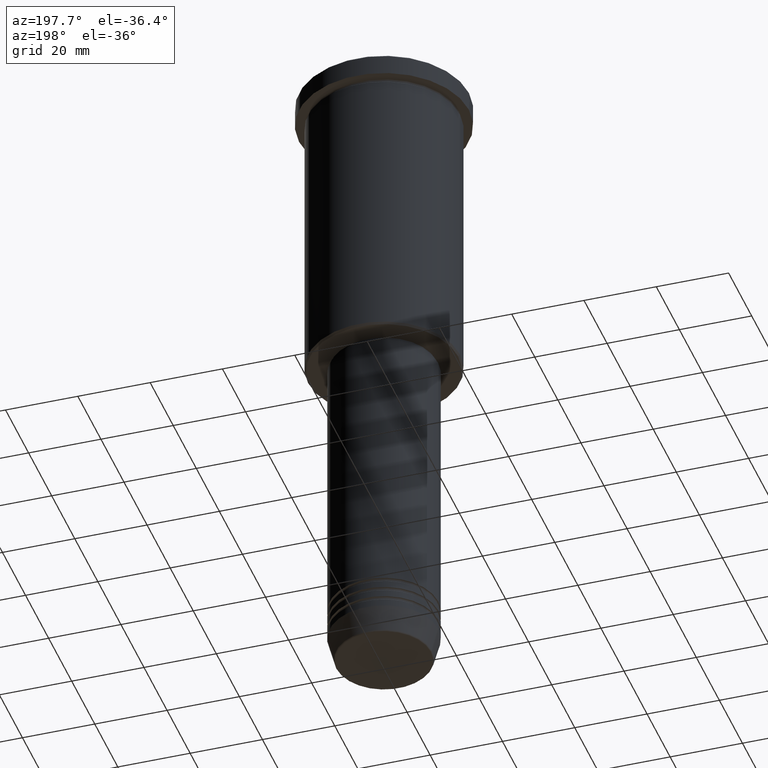
[diagram: clean part render]
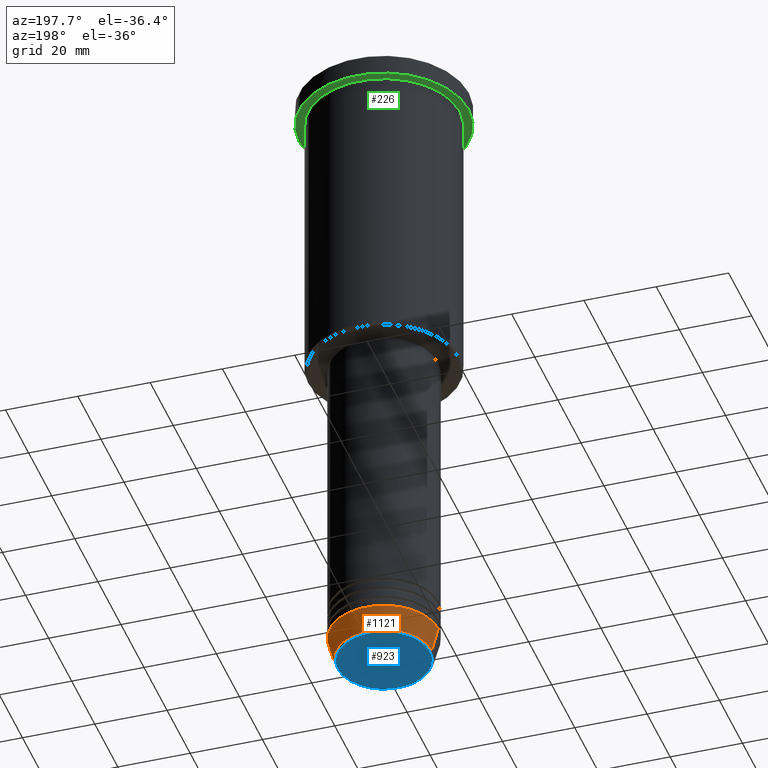
[diagram: same view with three faces highlighted in distinct colors, each labeled with its STEP entity id]
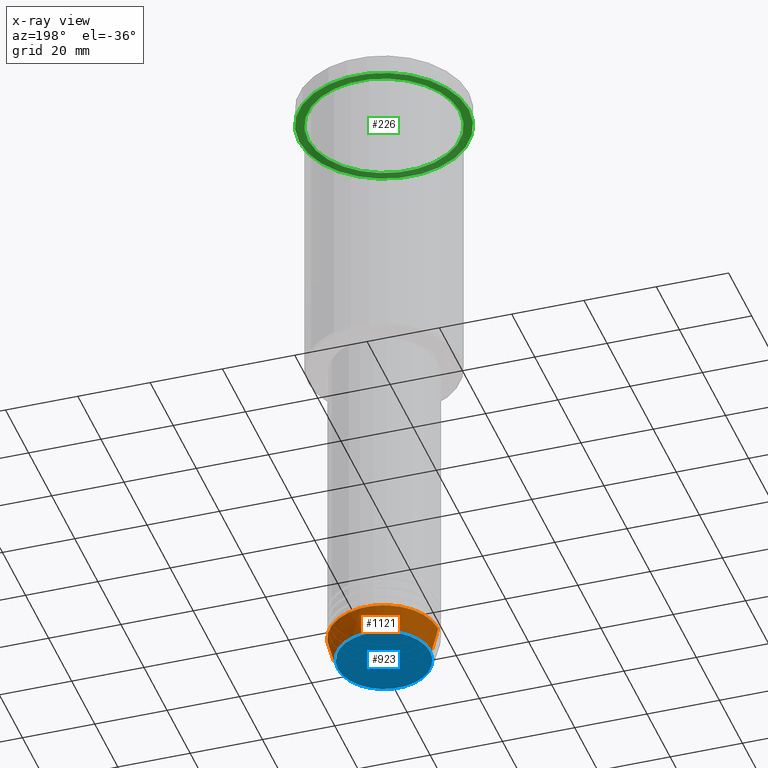
[diagram: x-ray of the same camera — body ghosted, the three highlighted faces saturated]
A machine part, auxiliary view with three faces highlighted in distinct colors.
The next image is the same camera in x-ray (body ghosted, the three faces saturated) — at least one of them is partly hidden behind the body in this view.
Their STEP definitions:

[orange] entity #1121 — the highlighted conical surface has half-angle 15 deg.
#48 = EDGE_CURVE ( 'NONE', #150, #180, #400, .T. ) ;
#60 = LINE ( 'NONE', #702, #738 ) ;
#91 = VECTOR ( 'NONE', #801, 1000.000000000000000 ) ;
#104 = CIRCLE ( 'NONE', #961, 13.22365507213720370 ) ;
#132 = ORIENTED_EDGE ( 'NONE', *, *, #48, .F. ) ;
#150 = VERTEX_POINT ( 'NONE', #839 ) ;
#178 = EDGE_CURVE ( 'NONE', #1033, #1110, #104, .T. ) ;
#180 = VERTEX_POINT ( 'NONE', #323 ) ;
#205 = ORIENTED_EDGE ( 'NONE', *, *, #1026, .T. ) ;
#231 = CONICAL_SURFACE ( 'NONE', #928, 15.00000000000000000, 0.2617993877991496299 ) ;
#237 = EDGE_LOOP ( 'NONE', ( #1063, #205, #132, #428 ) ) ;
#252 = LINE ( 'NONE', #891, #91 ) ;
#290 = DIRECTION ( 'NONE',  ( -0.000000000000000000, -0.000000000000000000, 1.000000000000000000 ) ) ;
#323 = CARTESIAN_POINT ( 'NONE',  ( -15.00000000000000000, 1.836970198721029589E-15, -174.0000000000000284 ) ) ;
#357 = AXIS2_PLACEMENT_3D ( 'NONE', #910, #290, #1014 ) ;
#360 = CARTESIAN_POINT ( 'NONE',  ( 13.22365507213720370, 0.000000000000000000, -180.6294095225512422 ) ) ;
#400 = CIRCLE ( 'NONE', #357, 15.00000000000000000 ) ;
#409 = CARTESIAN_POINT ( 'NONE',  ( 0.000000000000000000, 0.000000000000000000, -180.6294095225512422 ) ) ;
#428 = ORIENTED_EDGE ( 'NONE', *, *, #995, .F. ) ;
#640 = FACE_OUTER_BOUND ( 'NONE', #237, .T. ) ;
#702 = CARTESIAN_POINT ( 'NONE',  ( 15.00000000000000000, 0.000000000000000000, -174.0000000000000284 ) ) ;
#738 = VECTOR ( 'NONE', #1069, 1000.000000000000000 ) ;
#801 = DIRECTION ( 'NONE',  ( -0.2588190451025209615, 3.169619151431767406E-17, 0.9659258262890682012 ) ) ;
#839 = CARTESIAN_POINT ( 'NONE',  ( 15.00000000000000000, 0.000000000000000000, -174.0000000000000284 ) ) ;
#891 = CARTESIAN_POINT ( 'NONE',  ( -15.00000000000000000, 1.836970198721029589E-15, -174.0000000000000284 ) ) ;
#905 = DIRECTION ( 'NONE',  ( -0.000000000000000000, -0.000000000000000000, 1.000000000000000000 ) ) ;
#910 = CARTESIAN_POINT ( 'NONE',  ( 0.000000000000000000, 0.000000000000000000, -174.0000000000000284 ) ) ;
#918 = CARTESIAN_POINT ( 'NONE',  ( -13.22365507213720370, 1.728200442216589175E-15, -180.6294095225512422 ) ) ;
#928 = AXIS2_PLACEMENT_3D ( 'NONE', #1005, #905, #1180 ) ;
#947 = DIRECTION ( 'NONE',  ( 1.000000000000000000, 0.000000000000000000, 0.000000000000000000 ) ) ;
#961 = AXIS2_PLACEMENT_3D ( 'NONE', #409, #1127, #947 ) ;
#995 = EDGE_CURVE ( 'NONE', #1033, #150, #60, .T. ) ;
#1005 = CARTESIAN_POINT ( 'NONE',  ( 0.000000000000000000, 0.000000000000000000, -174.0000000000000284 ) ) ;
#1014 = DIRECTION ( 'NONE',  ( 1.000000000000000000, 0.000000000000000000, 0.000000000000000000 ) ) ;
#1026 = EDGE_CURVE ( 'NONE', #1110, #180, #252, .T. ) ;
#1033 = VERTEX_POINT ( 'NONE', #360 ) ;
#1063 = ORIENTED_EDGE ( 'NONE', *, *, #178, .T. ) ;
#1069 = DIRECTION ( 'NONE',  ( 0.2588190451025209615, 0.000000000000000000, 0.9659258262890682012 ) ) ;
#1110 = VERTEX_POINT ( 'NONE', #918 ) ;
#1121 = ADVANCED_FACE ( 'NONE', ( #640 ), #231, .T. ) ;
#1127 = DIRECTION ( 'NONE',  ( -0.000000000000000000, -0.000000000000000000, 1.000000000000000000 ) ) ;
#1180 = DIRECTION ( 'NONE',  ( 1.000000000000000000, 0.000000000000000000, 0.000000000000000000 ) ) ;

[blue] entity #923 — the highlighted planar face has unit normal (0, -0, 1).
#2 = AXIS2_PLACEMENT_3D ( 'NONE', #210, #754, #590 ) ;
#52 = VERTEX_POINT ( 'NONE', #1034 ) ;
#94 = ORIENTED_EDGE ( 'NONE', *, *, #151, .T. ) ;
#115 = VERTEX_POINT ( 'NONE', #1133 ) ;
#133 = PLANE ( 'NONE',  #852 ) ;
#151 = EDGE_CURVE ( 'NONE', #52, #115, #524, .T. ) ;
#210 = CARTESIAN_POINT ( 'NONE',  ( 0.000000000000000000, 0.000000000000000000, -181.0000000000000000 ) ) ;
#300 = CIRCLE ( 'NONE', #564, 12.74069215899266538 ) ;
#326 = DIRECTION ( 'NONE',  ( 0.000000000000000000, -0.000000000000000000, 1.000000000000000000 ) ) ;
#362 = EDGE_CURVE ( 'NONE', #115, #52, #300, .T. ) ;
#378 = DIRECTION ( 'NONE',  ( 1.000000000000000000, 0.000000000000000000, 0.000000000000000000 ) ) ;
#524 = CIRCLE ( 'NONE', #2, 12.74069215899266538 ) ;
#564 = AXIS2_PLACEMENT_3D ( 'NONE', #898, #1178, #378 ) ;
#590 = DIRECTION ( 'NONE',  ( 1.000000000000000000, 0.000000000000000000, 0.000000000000000000 ) ) ;
#623 = DIRECTION ( 'NONE',  ( 1.000000000000000000, 0.000000000000000000, 0.000000000000000000 ) ) ;
#743 = ORIENTED_EDGE ( 'NONE', *, *, #362, .T. ) ;
#754 = DIRECTION ( 'NONE',  ( 0.000000000000000000, 0.000000000000000000, -1.000000000000000000 ) ) ;
#760 = FACE_OUTER_BOUND ( 'NONE', #1123, .T. ) ;
#852 = AXIS2_PLACEMENT_3D ( 'NONE', #1136, #326, #623 ) ;
#898 = CARTESIAN_POINT ( 'NONE',  ( 0.000000000000000000, 0.000000000000000000, -181.0000000000000000 ) ) ;
#923 = ADVANCED_FACE ( 'NONE', ( #760 ), #133, .F. ) ;
#1034 = CARTESIAN_POINT ( 'NONE',  ( -12.74069215899266538, 1.589857736427681824E-15, -181.0000000000000000 ) ) ;
#1123 = EDGE_LOOP ( 'NONE', ( #743, #94 ) ) ;
#1133 = CARTESIAN_POINT ( 'NONE',  ( 12.74069215899266538, 0.000000000000000000, -181.0000000000000000 ) ) ;
#1136 = CARTESIAN_POINT ( 'NONE',  ( 0.000000000000000000, 0.000000000000000000, -181.0000000000000000 ) ) ;
#1178 = DIRECTION ( 'NONE',  ( 0.000000000000000000, 0.000000000000000000, -1.000000000000000000 ) ) ;

[green] entity #226 — the highlighted planar face has unit normal (0, 0, -1).
#78 = AXIS2_PLACEMENT_3D ( 'NONE', #456, #802, #181 ) ;
#103 = CIRCLE ( 'NONE', #298, 23.50000000000000000 ) ;
#161 = CIRCLE ( 'NONE', #670, 23.50000000000000000 ) ;
#181 = DIRECTION ( 'NONE',  ( -1.000000000000000000, 0.000000000000000000, 0.000000000000000000 ) ) ;
#226 = ADVANCED_FACE ( 'NONE', ( #971, #798 ), #239, .T. ) ;
#239 = PLANE ( 'NONE',  #655 ) ;
#298 = AXIS2_PLACEMENT_3D ( 'NONE', #1059, #1141, #498 ) ;
#318 = EDGE_LOOP ( 'NONE', ( #1169, #518 ) ) ;
#358 = CIRCLE ( 'NONE', #78, 21.00000000000000000 ) ;
#365 = CARTESIAN_POINT ( 'NONE',  ( -21.00000000000000000, 0.000000000000000000, -5.999999999999994671 ) ) ;
#375 = DIRECTION ( 'NONE',  ( -0.000000000000000000, -0.000000000000000000, 1.000000000000000000 ) ) ;
#387 = DIRECTION ( 'NONE',  ( -0.000000000000000000, -0.000000000000000000, 1.000000000000000000 ) ) ;
#392 = VERTEX_POINT ( 'NONE', #365 ) ;
#456 = CARTESIAN_POINT ( 'NONE',  ( 0.000000000000000000, 0.000000000000000000, -5.999999999999994671 ) ) ;
#466 = VERTEX_POINT ( 'NONE', #1172 ) ;
#470 = DIRECTION ( 'NONE',  ( -1.000000000000000000, 0.000000000000000000, 0.000000000000000000 ) ) ;
#498 = DIRECTION ( 'NONE',  ( 1.000000000000000000, 0.000000000000000000, 0.000000000000000000 ) ) ;
#511 = DIRECTION ( 'NONE',  ( -1.000000000000000000, 0.000000000000000000, -0.000000000000000000 ) ) ;
#518 = ORIENTED_EDGE ( 'NONE', *, *, #800, .T. ) ;
#538 = EDGE_LOOP ( 'NONE', ( #759, #993 ) ) ;
#568 = EDGE_CURVE ( 'NONE', #627, #466, #103, .T. ) ;
#600 = CARTESIAN_POINT ( 'NONE',  ( 0.000000000000000000, 23.50000000000000000, -5.999999999999994671 ) ) ;
#627 = VERTEX_POINT ( 'NONE', #770 ) ;
#638 = EDGE_CURVE ( 'NONE', #392, #896, #358, .T. ) ;
#655 = AXIS2_PLACEMENT_3D ( 'NONE', #600, #1161, #511 ) ;
#670 = AXIS2_PLACEMENT_3D ( 'NONE', #827, #387, #1017 ) ;
#736 = CARTESIAN_POINT ( 'NONE',  ( 0.000000000000000000, 0.000000000000000000, -5.999999999999994671 ) ) ;
#759 = ORIENTED_EDGE ( 'NONE', *, *, #568, .F. ) ;
#770 = CARTESIAN_POINT ( 'NONE',  ( 23.50000000000000000, 0.000000000000000000, -5.999999999999994671 ) ) ;
#775 = CARTESIAN_POINT ( 'NONE',  ( 21.00000000000000000, 2.571758278209441661E-15, -5.999999999999994671 ) ) ;
#798 = FACE_OUTER_BOUND ( 'NONE', #538, .T. ) ;
#800 = EDGE_CURVE ( 'NONE', #896, #392, #838, .T. ) ;
#802 = DIRECTION ( 'NONE',  ( -0.000000000000000000, -0.000000000000000000, 1.000000000000000000 ) ) ;
#827 = CARTESIAN_POINT ( 'NONE',  ( 0.000000000000000000, 0.000000000000000000, -5.999999999999994671 ) ) ;
#838 = CIRCLE ( 'NONE', #876, 21.00000000000000000 ) ;
#872 = EDGE_CURVE ( 'NONE', #466, #627, #161, .T. ) ;
#876 = AXIS2_PLACEMENT_3D ( 'NONE', #736, #375, #470 ) ;
#896 = VERTEX_POINT ( 'NONE', #775 ) ;
#971 = FACE_BOUND ( 'NONE', #318, .T. ) ;
#993 = ORIENTED_EDGE ( 'NONE', *, *, #872, .F. ) ;
#1017 = DIRECTION ( 'NONE',  ( 1.000000000000000000, 0.000000000000000000, 0.000000000000000000 ) ) ;
#1059 = CARTESIAN_POINT ( 'NONE',  ( 0.000000000000000000, 0.000000000000000000, -5.999999999999994671 ) ) ;
#1141 = DIRECTION ( 'NONE',  ( -0.000000000000000000, -0.000000000000000000, 1.000000000000000000 ) ) ;
#1161 = DIRECTION ( 'NONE',  ( 0.000000000000000000, 0.000000000000000000, -1.000000000000000000 ) ) ;
#1169 = ORIENTED_EDGE ( 'NONE', *, *, #638, .T. ) ;
#1172 = CARTESIAN_POINT ( 'NONE',  ( -23.50000000000000000, 2.877919977996280320E-15, -5.999999999999994671 ) ) ;